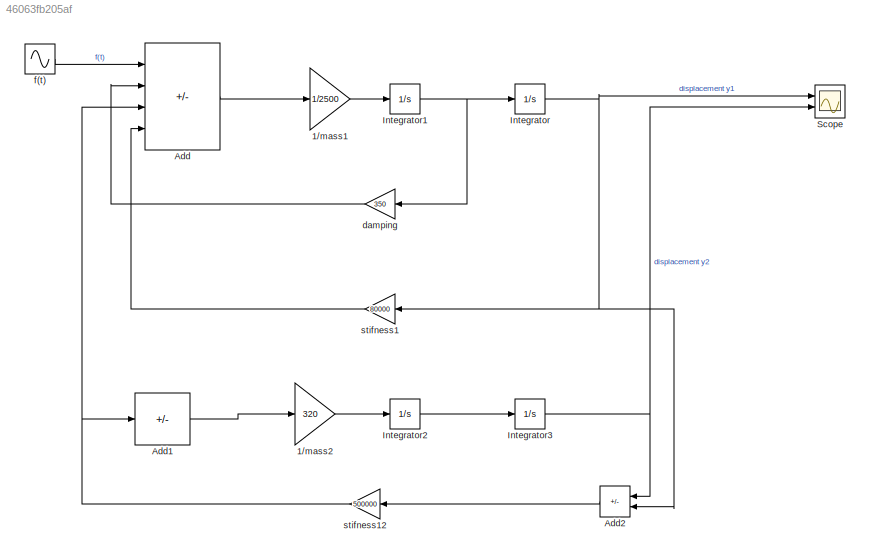
MODEL slx_46063fb205af
KIND model
CONFIG AbsTol = auto
CONFIG EnableMultiTasking = off
CONFIG FixedStep = auto
CONFIG MaxStep = auto
CONFIG MinStep = auto
CONFIG RelTol = 1e-3
CONFIG SampleTimeConstraint = Unconstrained
CONFIG SolverName = VariableStepAuto
CONFIG StartTime = 0.0
CONFIG StopTime = 10.0
BLOCK [Gain] 1//mass1
  Gain = 1/2500
BLOCK [Gain] 1//mass2
  Gain = 320
BLOCK [Sum] Add
  IconShape = rectangular
  Inputs = +---
  Ports = [4, 1]
BLOCK [Sum] Add1
  IconShape = rectangular
  Inputs = -
  Ports = [1, 1]
BLOCK [Sum] Add2
  IconShape = rectangular
  Inputs = +-
  NameLocation = top
  Ports = [2, 1]
BLOCK [Integrator] Integrator
  Ports = [1, 1]
BLOCK [Integrator] Integrator1
  Ports = [1, 1]
BLOCK [Integrator] Integrator2
  Ports = [1, 1]
BLOCK [Integrator] Integrator3
  Ports = [1, 1]
BLOCK [Scope] Scope
  Floating = off
  NumInputPorts = 2
  Ports = [2]
  ScopeSpecificationString = Simulink.scopes.TimeScopeBlockCfg('CurrentConfiguration', extmgr.ConfigurationSet(extmgr.Configuration('Core','General UI',true),extmgr.Configuration('Core','Source UI',true),extmgr.Configuration('Sources','WiredSimulink',true),extmgr.Configuration('Visuals','Time Domain',true),extmgr.Configuration('Tools','Plot Navigation',true),extmgr.Configuration('Tools','Measurements',true,'Version','2020b'))...<+19ch>
BLOCK [Gain] damping
  Gain = 350
  NameLocation = top
BLOCK [Sin] f(t)
  Amplitude = 2
  Frequency = 10
  Ports = [0, 1]
  SampleTime = 0
BLOCK [Gain] stifness1
  Gain = 80000
  NameLocation = top
BLOCK [Gain] stifness12
  Gain = 500000
  NameLocation = top
LINE 1//mass1:1 -> Integrator1:1
LINE 1//mass2:1 -> Integrator2:1
LINE Add1:1 -> 1//mass2:1
LINE Add2:1 -> stifness12:1
LINE Add:1 -> 1//mass1:1
NET Integrator1:1 -> Integrator:1, damping:1
LINE Integrator2:1 -> Integrator3:1
NET Integrator3:1 -> Add2:1, Scope:2
NET Integrator:1 -> Add2:2, Scope:1, stifness1:1
LINE damping:1 -> Add:2
LINE f(t):1 -> Add:1
NET stifness12:1 -> Add1:1, Add:3
LINE stifness1:1 -> Add:4
note: NET lines group one-source signal fan-out (src -> all destinations, sorted); 1:1 wires keep LINE
